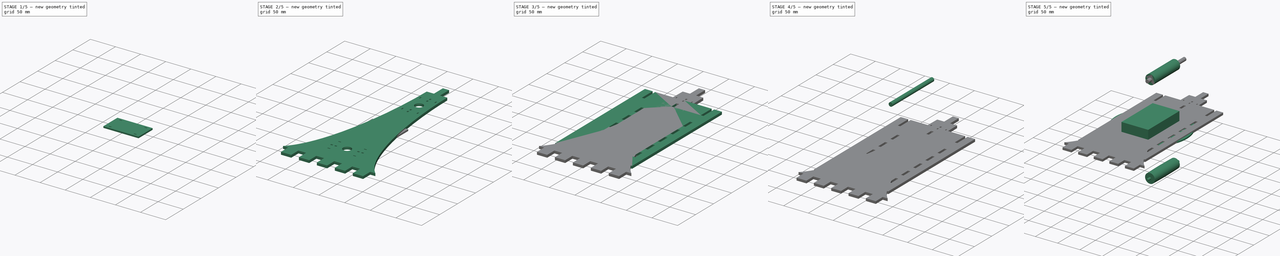
[diagram: build sequence overview — one tinted view per stage of 5, left to right]
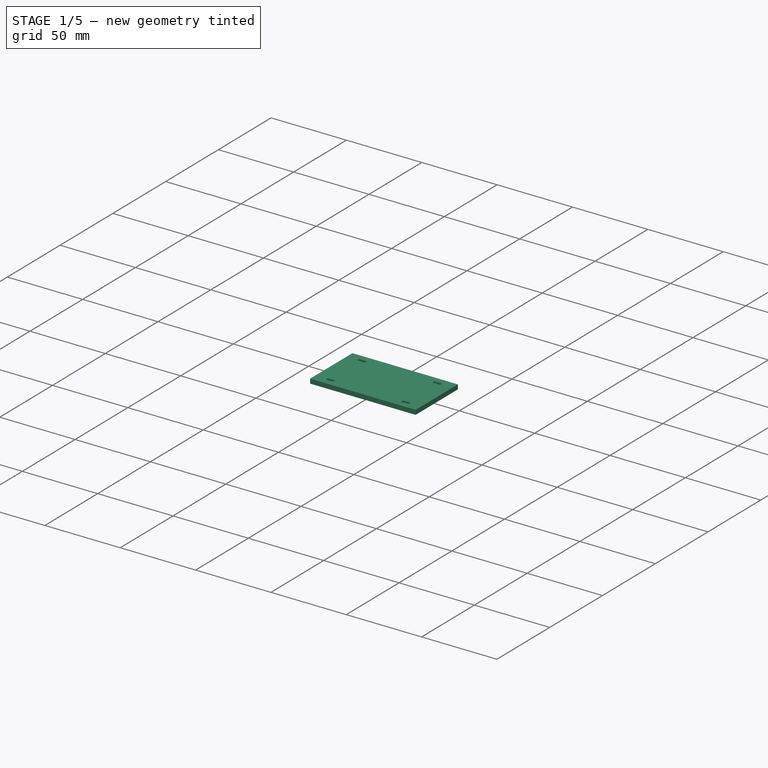
[diagram: stage 1 of 5 — iso view after this stage's code; geometry added in this stage tinted green]
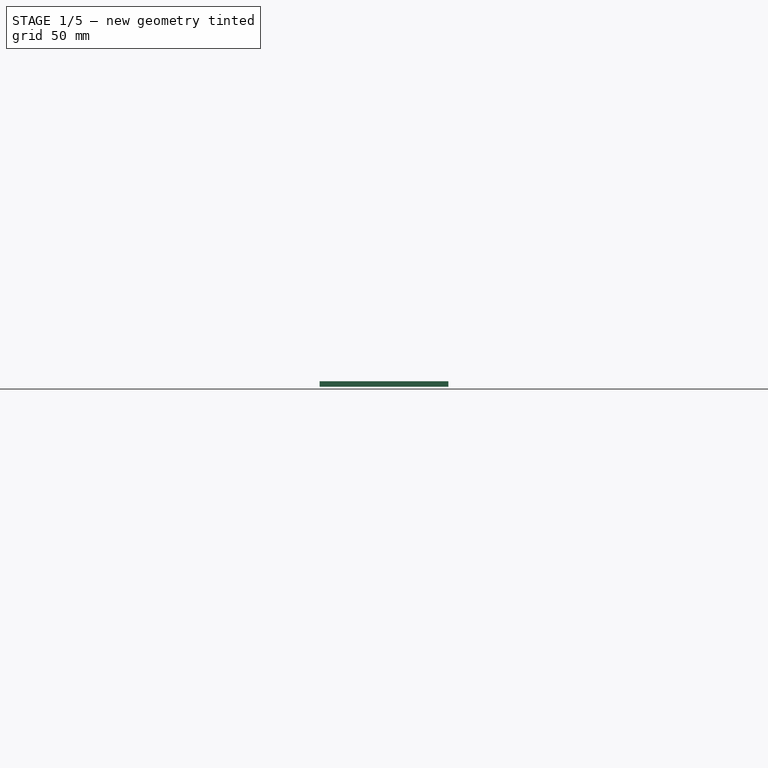
[diagram: stage 1 of 5 — front view after this stage's code; geometry added in this stage tinted green]
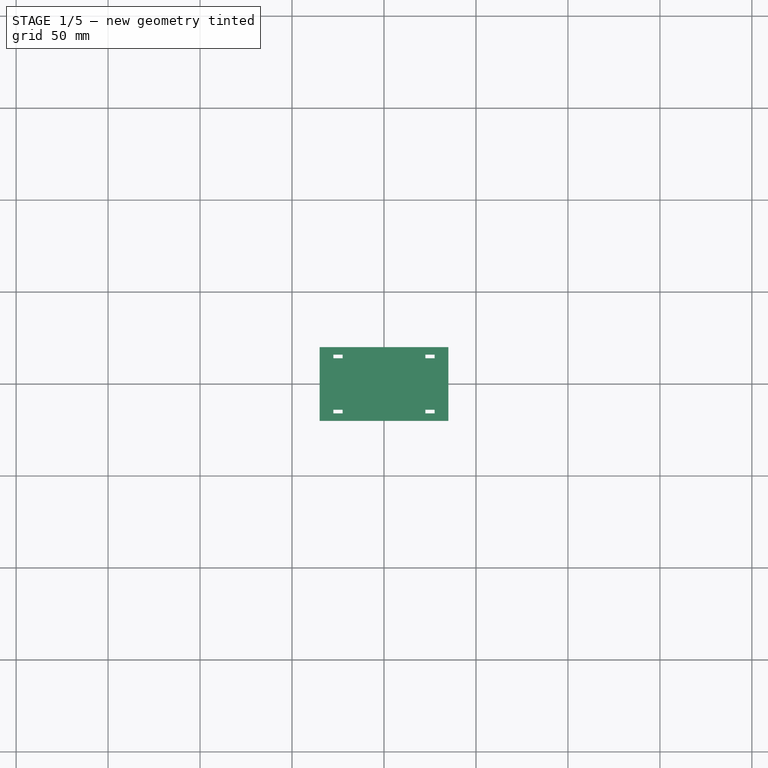
[diagram: stage 1 of 5 — top view after this stage's code; geometry added in this stage tinted green]
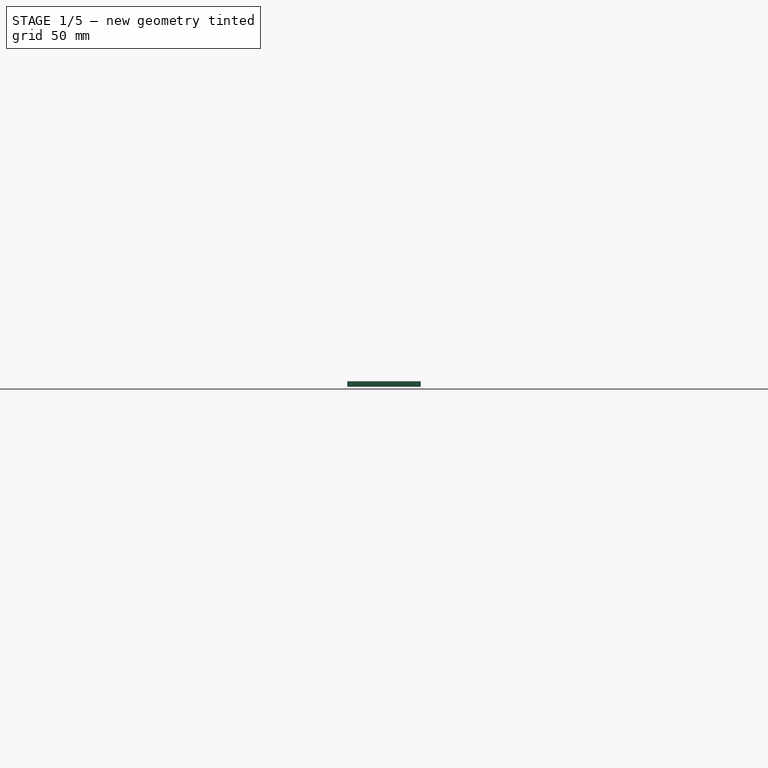
[diagram: stage 1 of 5 — right view after this stage's code; geometry added in this stage tinted green]
FCSTD DOCUMENT  (FreeCAD 0.17R13509 (Git))
Label: All
License: All rights reserved
LicenseURL: http://en.wikipedia.org/wiki/All_rights_reserved
objects: App::Part×21, PartDesign::Pad×18, App::DocumentObjectGroup×15, Drawing::FeatureViewPart×6, Sketcher::SketchObject×5, Part::Cylinder×3, Part::Revolution×2, PartDesign::Pocket×2, PartDesign::Revolution×1, Part::Extrusion×1, Part::MultiFuse×1, Part::Cut×1, Drawing::FeaturePage×1
note: 55 computed .brp shape members not serialized (recipe doc carries the construction recipe); baked Part::Feature solids carry a one-line shape summary decoded from their .brp

FEATURE [App::Part] Part002  label="InnerBearingHolder"
  Group = -> [Pad055]
  License = CC BY 3.0
  LicenseURL = http://creativecommons.org/licenses/by/3.0/
  Origin = -> Origin002
  Placement = pos=(0,-100,82) rot=(0,0,1;0rad)
FEATURE [App::DocumentObjectGroup] Group009  label="bhb_right"
  Group = -> [Part002,Part015]
FEATURE [PartDesign::Pad] Pad056
  Length = 3
  Length2 = 100
  Refine = true
  Type = 0
FEATURE [App::Part] Part018  label="InnerBearingHolder003"
  Group = -> [Pad056]
  License = CC BY 3.0
  LicenseURL = http://creativecommons.org/licenses/by/3.0/
  Origin = -> Origin018
  Placement = pos=(0,100,85) rot=(-0.707107,0.707107,0;3.14159rad)
FEATURE [PartDesign::Pad] Pad057
  Length = 3
  Length2 = 100
  Refine = true
  Type = 0
FEATURE [App::Part] Part017  label="InnerBearingHolder002"
  Group = -> [Pad057]
  License = CC BY 3.0
  LicenseURL = http://creativecommons.org/licenses/by/3.0/
  Origin = -> Origin017
  Placement = pos=(0,100,-2) rot=(-0.707107,0.707107,0;3.14159rad)
FEATURE [PartDesign::Pad] Pad058
  Length = 3
  Length2 = 100
  Refine = true
  Type = 0
FEATURE [App::Part] Part016  label="OuterBearingHolder002"
  Group = -> [Pad058]
  License = CC BY 3.0
  LicenseURL = http://creativecommons.org/licenses/by/3.0/
  Origin = -> Origin016
  Placement = pos=(0,100,-10) rot=(0.707107,-0.707107,0;3.14159rad)
FEATURE [App::DocumentObjectGroup] Group013  label="bh_top_left"
  Group = -> [Part017,Part016]
FEATURE [PartDesign::Pad] Pad059
  Length = 3
  Length2 = 100
  Refine = true
  Type = 0
FEATURE [App::Part] Part019  label="OuterBearingHolder003"
  Group = -> [Pad059]
  License = CC BY 3.0
  LicenseURL = http://creativecommons.org/licenses/by/3.0/
  Origin = -> Origin019
  Placement = pos=(0,100,93) rot=(0.707107,0.707107,0;3.14159rad)
FEATURE [App::DocumentObjectGroup] Group014  label="bh_top_right"
  Group = -> [Part019,Part018]
FEATURE [App::DocumentObjectGroup] Group012  label="bh_top"
  Group = -> [Group013,Group014]
FEATURE [PartDesign::Pad] Pad060
  Length = 3
  Length2 = 100
  Refine = true
  Type = 0
FEATURE [App::Part] Part001  label="OuterBearingHolder"
  Group = -> [Pad060]
  License = CC BY 3.0
  LicenseURL = http://creativecommons.org/licenses/by/3.0/
  Origin = -> Origin001
  Placement = pos=(0,-100,-13) rot=(0,0,1;0rad)
FEATURE [App::DocumentObjectGroup] Group008  label="bhb_left"
  Group = -> [Part001,Part014]
FEATURE [App::DocumentObjectGroup] Group007  label="bh_bottom"
  Group = -> [Group008,Group009]
FEATURE [App::DocumentObjectGroup] Group015  label="bearing_holder"
  Group = -> [Group012,Group007]
FEATURE [Drawing::FeatureViewPart] Ortho  label="Hat001"
  Direction = (0,0,1)
  HiddenWidth = 0.15
  LineWidth = 0.35
  Rotation = 0
  ShowHiddenLines = false
  ShowSmoothLines = false
  Source = -> Pad023
  Tolerance = 0.05
  ViewResult = <g id="Ortho_0_0"\n   transform="rotate(0,109.87,110) translate(109.87,110) scale(1,1)"\n  >\n<g   fill="none"\n   stroke="rgb(0, 0, 0)"\n   stroke-linecap="butt"\n   stroke-linejoin="miter"\n   stroke-width="0.350000"\n   transform="scale(1,-1)"\n  >\n<circle cx ="0" cy ="0" r ="80" /><path id= "2" d=" M 45 6 L 50 6 " />\n<path id= "3" d=" M 50 6 L 50 -6 " />\n<path id= "4" d=" M 50 -6 L 45 -6 " />\n<path id= "5" d=" M 45 -6 L 45 6 " />\n<path id= "6" d=" M -50 6 L -45 6 " />\n<path id= "7" d=" M -45 6 L -45 -6 " />\n<path id= "8" d=" M -45 -6 L -50 -6 " />\n<path id= "9" d=" M -50 -6 L -50 6 " />\n</g>\n</g>
  Visible = true
  X = 109.87
  Y = 110
FEATURE [Drawing::FeatureViewPart] Ortho001  label="Support004"
  Direction = (0,0,1)
  HiddenWidth = 0.15
  LineWidth = 0.35
  Rotation = 0
  ShowHiddenLines = false
  ShowSmoothLines = false
  Source = -> Pad052
  Tolerance = 0.05
  ViewResult = <blob: 3707 chars omitted>
  Visible = true
  X = 475
  Y = 175
FEATURE [Drawing::FeatureViewPart] Ortho003  label="Vertical"
  Direction = (0,0,1)
  HiddenWidth = 0.15
  LineWidth = 0.35
  Rotation = 0
  ShowHiddenLines = false
  ShowSmoothLines = false
  Source = -> Pocket002
  Tolerance = 0.05
  ViewResult = <blob: 4560 chars omitted>
  Visible = true
  X = 275
  Y = 212.5
FEATURE [Drawing::FeatureViewPart] Ortho002  label="Beam"
  Direction = (0,0,1)
  HiddenWidth = 0.15
  LineWidth = 0.35
  Rotation = 90
  ShowHiddenLines = false
  ShowSmoothLines = false
  Source = -> Pad
  Tolerance = 0.05
  ViewResult = <g id="Ortho_0_002"\n   transform="rotate(90,50,300) translate(50,300) scale(1,1)"\n  >\n<g   fill="none"\n   stroke="rgb(0, 0, 0)"\n   stroke-linecap="butt"\n   stroke-linejoin="miter"\n   stroke-width="0.350000"\n   transform="scale(1,-1)"\n  >\n<path id= "1" d=" M -53 6 L 53 6 " />\n<path id= "2" d=" M 53 6 L 53 2 " />\n<path id= "3" d=" M 53 2 L 42 2 " />\n<path id= "4" d=" M 42 2 L 42 -2 " />\n<path id= "5" d=" M 42 -2 L 53 -2 " />\n<path id= "6" d=" M 53 -2 L 53 -6 " />\n<path id= "7" d=" M 53 -6 L -53 -6 " />\n<path id= "8" d=" M -53 -2 L -53 -6 " />\n<path id= "9" d=" M -42 -2 L -53 -2 " />\n<path id= "10" d=" M -42 2 L -42 -2 " />\n<path id= "11" d=" M -53 2 L -42 2 " />\n<path id= "12" d=" M -53 6 L -53 2 " />\n<path id= "13" d=" M 37 -2.5 L 37 2.5 " />\n<path id= "14" d=" M 39 -2.5 L 37 -2.5 " />\n<path id= "15" d=" M 39 2.5 L 39 -2.5 " />\n<path id= "16" d=" M 37 2.5 L 39 2.5 " />\n<path id= "17" d=" M -39 -2.5 L -39 2.5 " />\n<path id= "18" d=" M -37 -2.5 L -39 -2.5 " />\n<path id= "19" d=" M -37 2.5 L -37 -2.5 " />\n<path id= "20" d=" M -39 2.5 L -37 2.5 " />\n</g>\n</g>
  Visible = true
  X = 50
  Y = 300
FEATURE [Drawing::FeatureViewPart] Ortho004  label="Ortho_0_0"
  Direction = (0,0,1)
  HiddenWidth = 0.15
  LineWidth = 0.35
  Rotation = 90
  ShowHiddenLines = false
  ShowSmoothLines = false
  Source = -> Pad060
  Tolerance = 0.05
  ViewResult = <g id="Ortho_0_0"\n   transform="rotate(90,110,300) translate(110,300) scale(1,1)"\n  >\n<g   fill="none"\n   stroke="rgb(0, 0, 0)"\n   stroke-linecap="butt"\n   stroke-linejoin="miter"\n   stroke-width="0.350000"\n   transform="scale(1,-1)"\n  >\n<path id= "1" d=" M -35 20 L 35 20 " />\n<path id= "2" d=" M 35 20 L 35 -20 " />\n<path id= "3" d=" M 35 -20 L -35 -20 " />\n<path id= "4" d=" M -35 -20 L -35 20 " />\n<path id= "5" d=" M -27.5 -16 L -27.5 -14 " />\n<path id= "6" d=" M -22.5 -16 L -27.5 -16 " />\n<path id= "7" d=" M -22.5 -14 L -22.5 -16 " />\n<path id= "8" d=" M -27.5 -14 L -22.5 -14 " />\n<path id= "9" d=" M 22.5 -16 L 22.5 -14 " />\n<path id= "10" d=" M 27.5 -16 L 22.5 -16 " />\n<path id= "11" d=" M 27.5 -14 L 27.5 -16 " />\n<path id= "12" d=" M 22.5 -14 L 27.5 -14 " />\n<path id= "13" d=" M 22.5 14 L 22.5 16 " />\n<path id= "14" d=" M 27.5 14 L 22.5 14 " />\n<path id= "15" d=" M 27.5 16 L 27.5 14 " />\n<path id= "16" d=" M 22.5 16 L 27.5 16 " />\n<path id= "17" d=" M -27.5 14 L -27.5 16 " />\n<path id= "18" d=" M -22.5 14 L -27.5 14 " />\n<path id= "19" d=" M -22.5 16 L -22.5 14 " />\n<path id= "20" d=" M -27.5 16 L -22.5 16 " />\n</g>\n</g>
  Visible = true
  X = 110
  Y = 300
FEATURE [Drawing::FeatureViewPart] Ortho005  label="Ortho_0_001"
  Direction = (0,0,1)
  HiddenWidth = 0.15
  LineWidth = 0.35
  Rotation = 90
  ShowHiddenLines = false
  ShowSmoothLines = false
  Source = -> Pad053
  Tolerance = 0.05
  ViewResult = <g id="Ortho_0_001"\n   transform="rotate(90,175,250) translate(175,250) scale(1,1)"\n  >\n<g   fill="none"\n   stroke="rgb(0, 0, 0)"\n   stroke-linecap="butt"\n   stroke-linejoin="miter"\n   stroke-width="0.350000"\n   transform="scale(1,-1)"\n  >\n<path id= "1" d=" M -35 20 L 35 20 " />\n<path id= "2" d=" M 35 20 L 35 -20 " />\n<path id= "3" d=" M 35 -20 L -35 -20 " />\n<path id= "4" d=" M -35 -20 L -35 20 " />\n<circle cx ="0" cy ="0" r ="4.2" /><path id= "6" d=" M -27.5 -16 L -27.5 -14 " />\n<path id= "7" d=" M -22.5 -16 L -27.5 -16 " />\n<path id= "8" d=" M -22.5 -14 L -22.5 -16 " />\n<path id= "9" d=" M -27.5 -14 L -22.5 -14 " />\n<path id= "10" d=" M 22.5 -16 L 22.5 -14 " />\n<path id= "11" d=" M 27.5 -16 L 22.5 -16 " />\n<path id= "12" d=" M 27.5 -14 L 27.5 -16 " />\n<path id= "13" d=" M 22.5 -14 L 27.5 -14 " />\n<path id= "14" d=" M 22.5 14 L 22.5 16 " />\n<path id= "15" d=" M 27.5 14 L 22.5 14 " />\n<path id= "16" d=" M 27.5 16 L 27.5 14 " />\n<path id= "17" d=" M 22.5 16 L 27.5 16 " />\n<path id= "18" d=" M -27.5 14 L -27.5 16 " />\n<path id= "19" d=" M -22.5 14 L -27.5 14 " />\n<path id= "20" d=" M -22.5 16 L -22.5 14 " />\n<path id= "21" d=" M -27.5 16 L -22.5 16 " />\n<path id= "22" d=" M 27 0 L 27 3 " />\n<path id= "23" d=" M 31 0 L 27 0 " />\n<path id= "24" d=" M 31 3 L 31 0 " />\n<path id= "25" d=" M 27 3 L 31 3 " />\n<path id= "26" d=" M 19 0 L 19 3 " />\n<path id= "27" d=" M 23 0 L 19 0 " />\n<path id= "28" d=" M 23 3 L 23 0 " />\n<path id= "29" d=" M 19 3 L 23 3 " />\n<path id= "30" d=" M -23 -3 L -23 0 " />\n<path id= "31" d=" M -19 -3 L -23 -3 " />\n<path id= "32" d=" M -19 0 L -19 -3 " />\n<path id= "33" d=" M -23 0 L -19 0 " />\n<path id= "34" d=" M -31 -3 L -31 0 " />\n<path id= "35" d=" M -27 -3 L -31 -3 " />\n<path id= "36" d=" M -27 0 L -27 -3 " />\n<path id= "37" d=" M -31 0 L -27 0 " />\n</g>\n</g>
  Visible = true
  X = 175
  Y = 250
FEATURE [Drawing::FeaturePage] Page  label="all"
  EditableTexts = AUTHOR NAME | DRAWING TITLE | FreeCAD DRAWING | A2 | X / Y | SCALE | PN | DN | DD/MM/YYYY | REV A
  Group = -> [Ortho,Ortho001,Ortho002,Ortho003,Ortho004,Ortho005]
  Template = <path>
note: 1 file-system path scrubbed to <path> (originals preserved in the JSON sidecar)
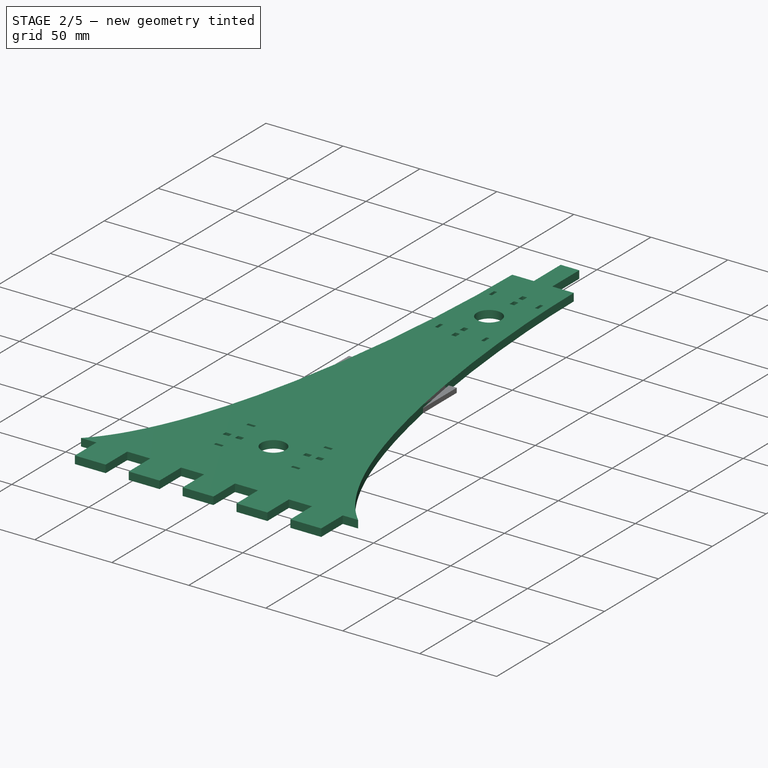
[diagram: stage 2 of 5 — iso view after this stage's code; geometry added in this stage tinted green]
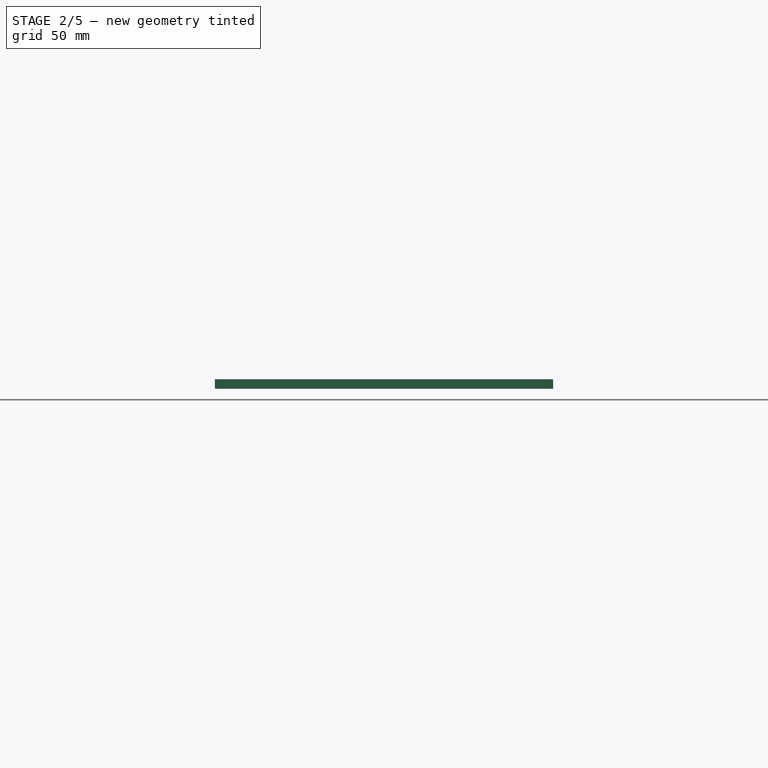
[diagram: stage 2 of 5 — front view after this stage's code; geometry added in this stage tinted green]
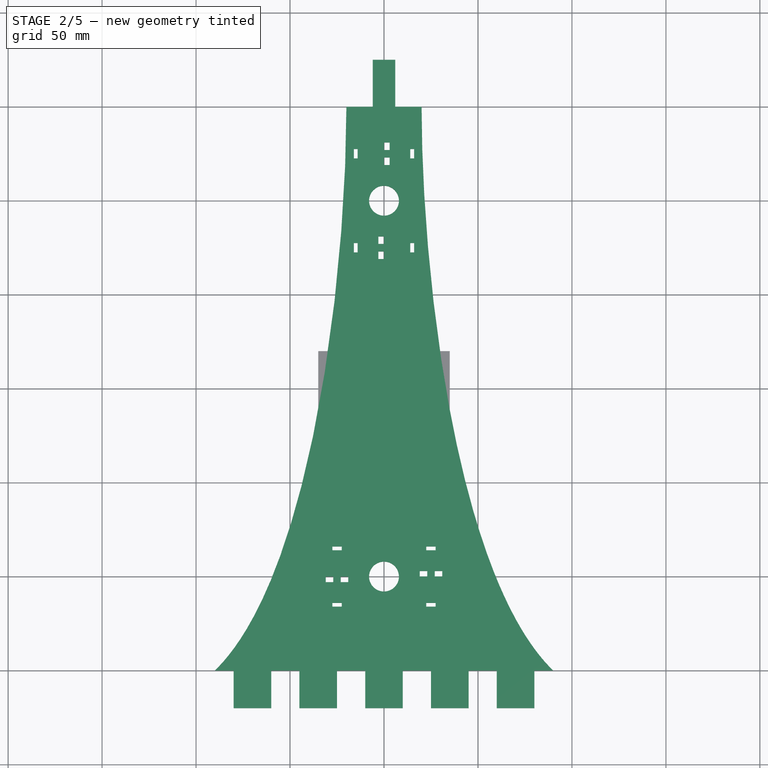
[diagram: stage 2 of 5 — top view after this stage's code; geometry added in this stage tinted green]
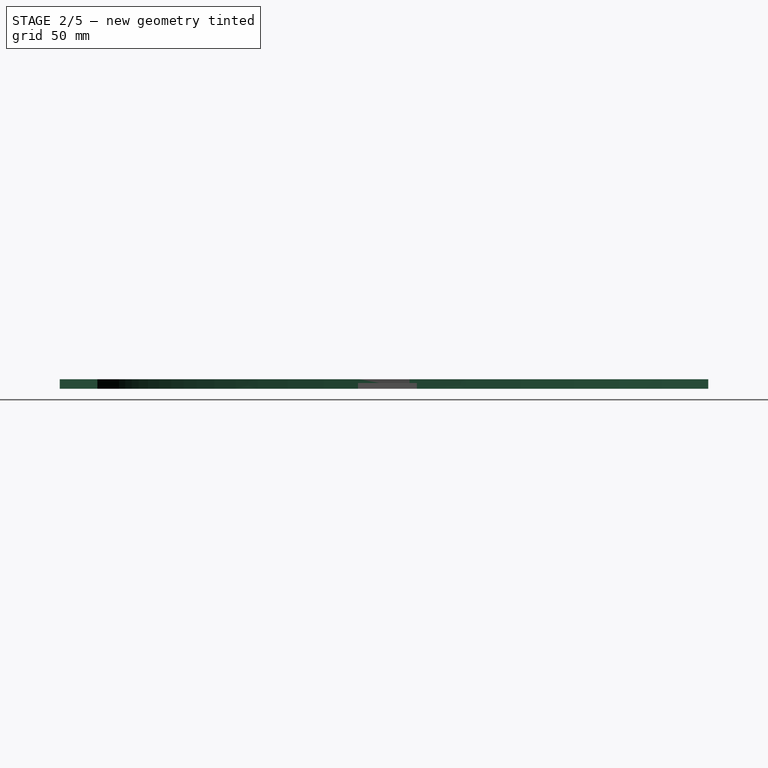
[diagram: stage 2 of 5 — right view after this stage's code; geometry added in this stage tinted green]
FEATURE [App::Part] Part010  label="Support"
  Group = -> [Pad052]
  License = CC BY 3.0
  LicenseURL = http://creativecommons.org/licenses/by/3.0/
  Origin = -> Origin010
  Placement = pos=(-16.5,-155,50) rot=(-0.57735,0.57735,0.57735;2.0944rad)
FEATURE [App::DocumentObjectGroup] Group  label="sup"
  Group = -> [Part010,Part023,Part021,Part022]
FEATURE [PartDesign::Pocket] Pocket002
  Length = 5
  Length2 = 100
  Type = 1
FEATURE [App::Part] Part  label="vertical_left"
  Group = -> [Pocket002]
  License = CC BY 3.0
  LicenseURL = http://creativecommons.org/licenses/by/3.0/
  Origin = -> Origin
  Placement = pos=(0,0,-10) rot=(0,0,1;0rad)
FEATURE [PartDesign::Pocket] Pocket003
  Length = 5
  Length2 = 100
  Type = 1
FEATURE [App::Part] Part005  label="vertical_right"
  Group = -> [Pocket003]
  License = CC BY 3.0
  LicenseURL = http://creativecommons.org/licenses/by/3.0/
  Origin = -> Origin005
  Placement = pos=(0,0,85) rot=(0,0,1;0rad)
FEATURE [App::DocumentObjectGroup] Group011  label="vertical001"
  Group = -> [Part,Part005]
FEATURE [PartDesign::Pad] Pad053
  Length = 3
  Length2 = 100
  Refine = true
  Type = 0
FEATURE [App::Part] Part014  label="InnerBearingHolder001"
  Group = -> [Pad053]
  License = CC BY 3.0
  LicenseURL = http://creativecommons.org/licenses/by/3.0/
  Origin = -> Origin014
  Placement = pos=(0,-100,-5) rot=(0,0,1;0rad)
FEATURE [PartDesign::Pad] Pad054
  Length = 3
  Length2 = 100
  Refine = true
  Type = 0
FEATURE [App::Part] Part015  label="OuterBearingHolder001"
  Group = -> [Pad054]
  License = CC BY 3.0
  LicenseURL = http://creativecommons.org/licenses/by/3.0/
  Origin = -> Origin015
  Placement = pos=(0,-100,90) rot=(0,0,1;0rad)
FEATURE [PartDesign::Pad] Pad055
  Length = 3
  Length2 = 100
  Refine = true
  Type = 0
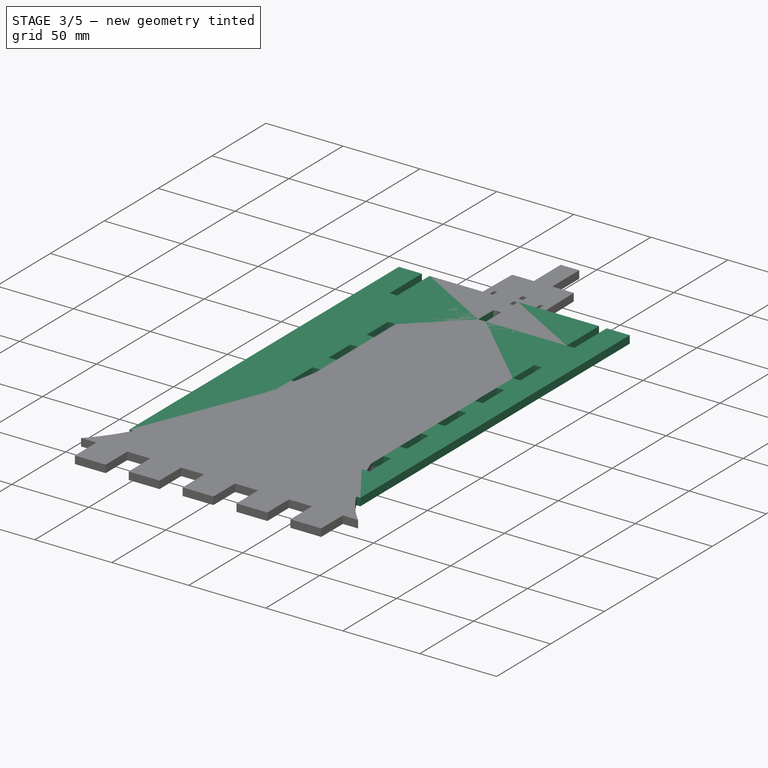
[diagram: stage 3 of 5 — iso view after this stage's code; geometry added in this stage tinted green]
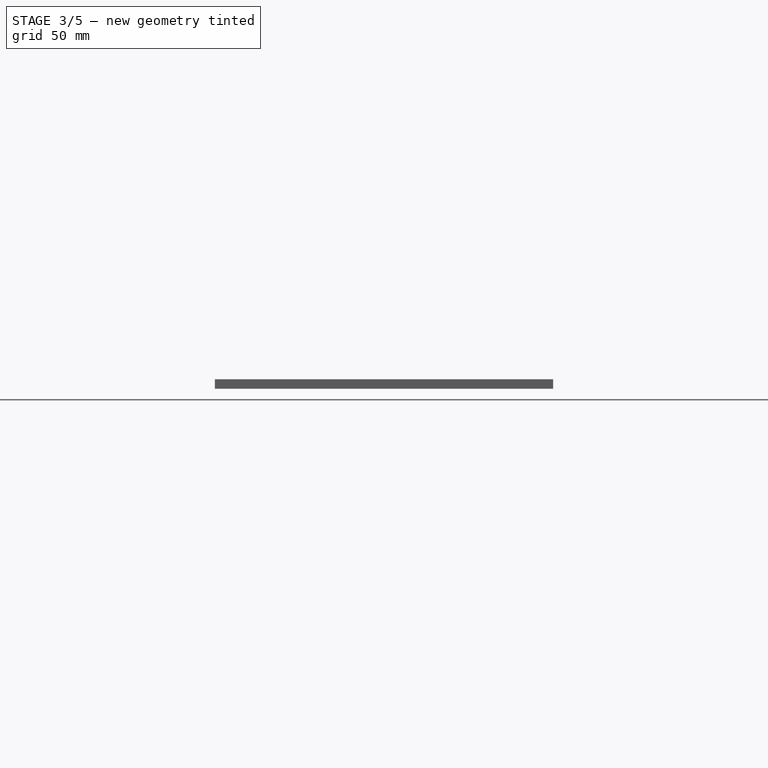
[diagram: stage 3 of 5 — front view after this stage's code; geometry added in this stage tinted green]
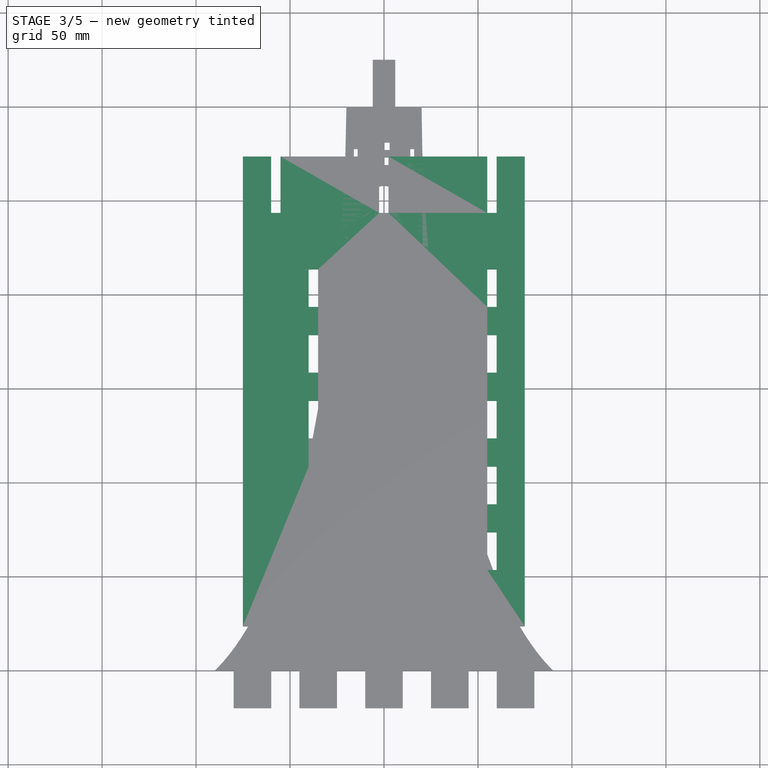
[diagram: stage 3 of 5 — top view after this stage's code; geometry added in this stage tinted green]
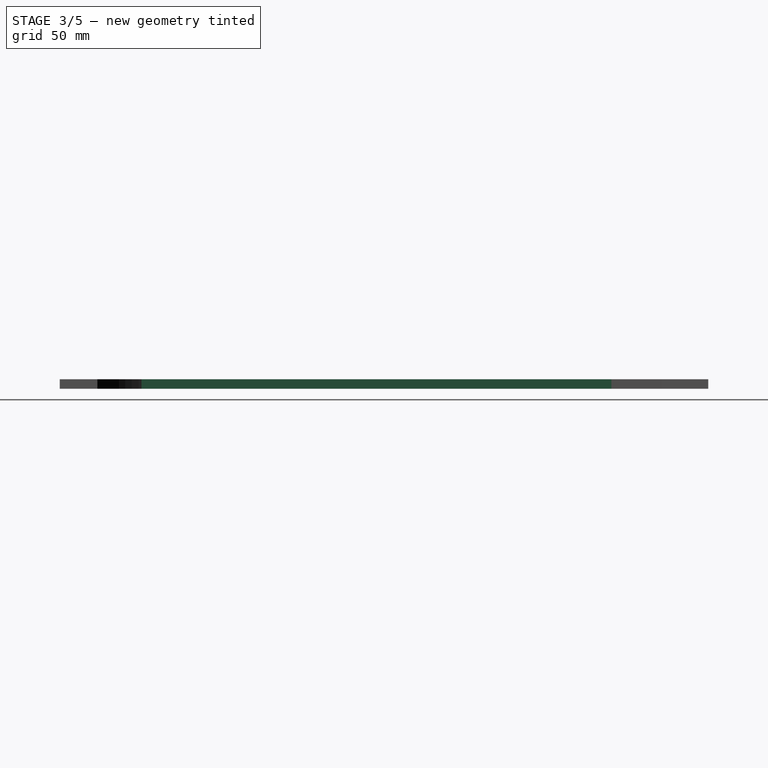
[diagram: stage 3 of 5 — right view after this stage's code; geometry added in this stage tinted green]
FEATURE [App::Part] Part003  label="TopBeam"
  Group = -> [Pad048]
  License = CC BY 3.0
  LicenseURL = http://creativecommons.org/licenses/by/3.0/
  Origin = -> Origin003
  Placement = pos=(1.5,125,40) rot=(0,1,0;4.71239rad)
FEATURE [App::DocumentObjectGroup] Group016  label="beams_top"
  Group = -> [Part003,Part020]
FEATURE [App::DocumentObjectGroup] Group010  label="beams"
  Group = -> [Group006,Group016]
FEATURE [PartDesign::Pad] Pad049
  Length = 5
  Length2 = 100
  Refine = true
  Type = 0
FEATURE [App::Part] Part022  label="Support002"
  Group = -> [Pad049]
  License = CC BY 3.0
  LicenseURL = http://creativecommons.org/licenses/by/3.0/
  Origin = -> Origin022
  Placement = pos=(-16.5,-165,50) rot=(-0.57735,0.57735,0.57735;2.0944rad)
FEATURE [PartDesign::Pad] Pad050
  Length = 5
  Length2 = 100
  Refine = true
  Type = 0
FEATURE [App::Part] Part021  label="Support001"
  Group = -> [Pad050]
  License = CC BY 3.0
  LicenseURL = http://creativecommons.org/licenses/by/3.0/
  Origin = -> Origin021
  Placement = pos=(-16.5,-170,50) rot=(-0.57735,0.57735,0.57735;2.0944rad)
FEATURE [PartDesign::Pad] Pad051
  Length = 5
  Length2 = 100
  Refine = true
  Type = 0
FEATURE [App::Part] Part023  label="Support003"
  Group = -> [Pad051]
  License = CC BY 3.0
  LicenseURL = http://creativecommons.org/licenses/by/3.0/
  Origin = -> Origin023
  Placement = pos=(-16.5,-160,50) rot=(-0.57735,0.57735,0.57735;2.0944rad)
FEATURE [PartDesign::Pad] Pad052
  Length = 5
  Length2 = 100
  Refine = true
  Type = 0
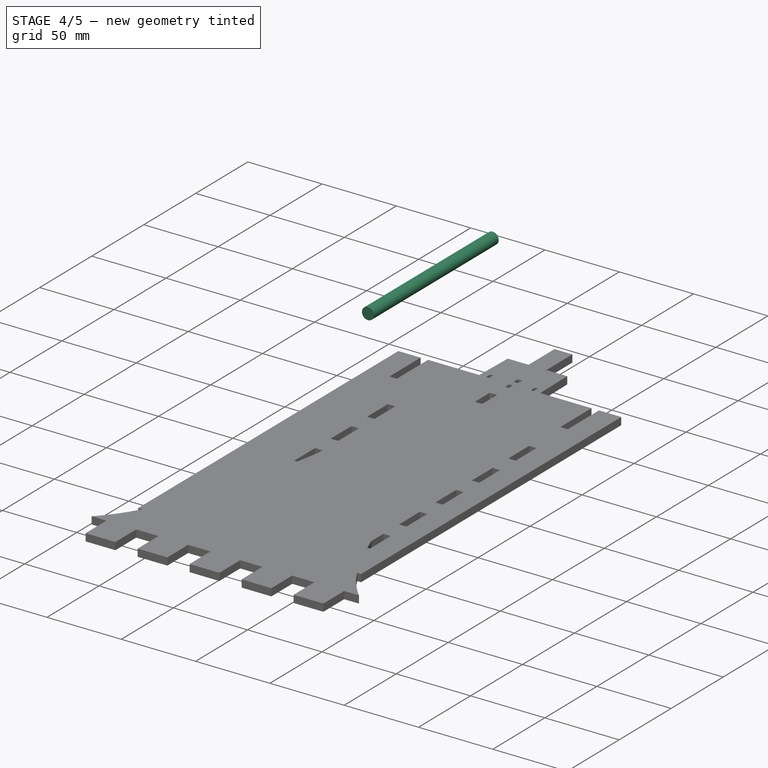
[diagram: stage 4 of 5 — iso view after this stage's code; geometry added in this stage tinted green]
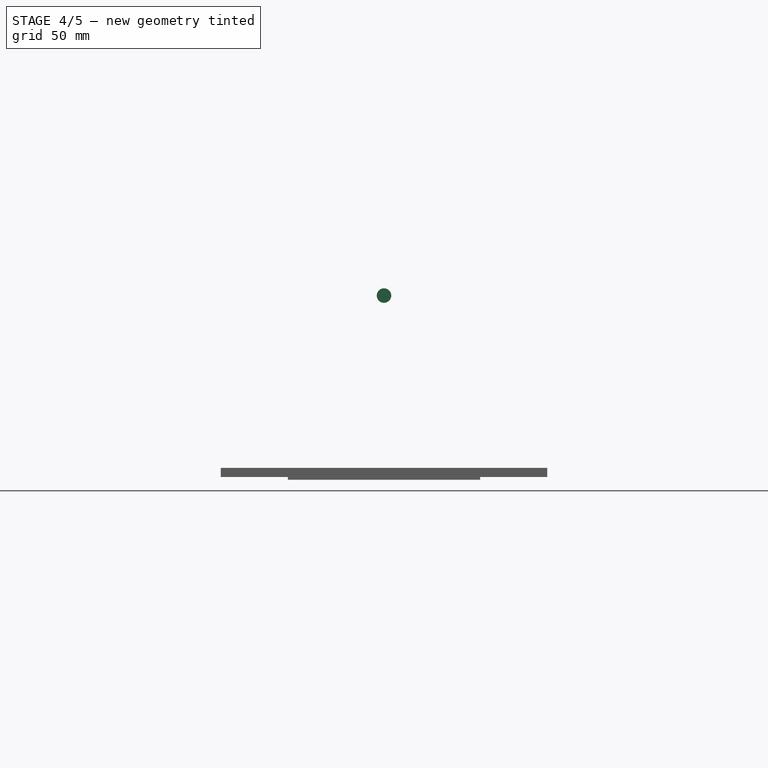
[diagram: stage 4 of 5 — front view after this stage's code; geometry added in this stage tinted green]
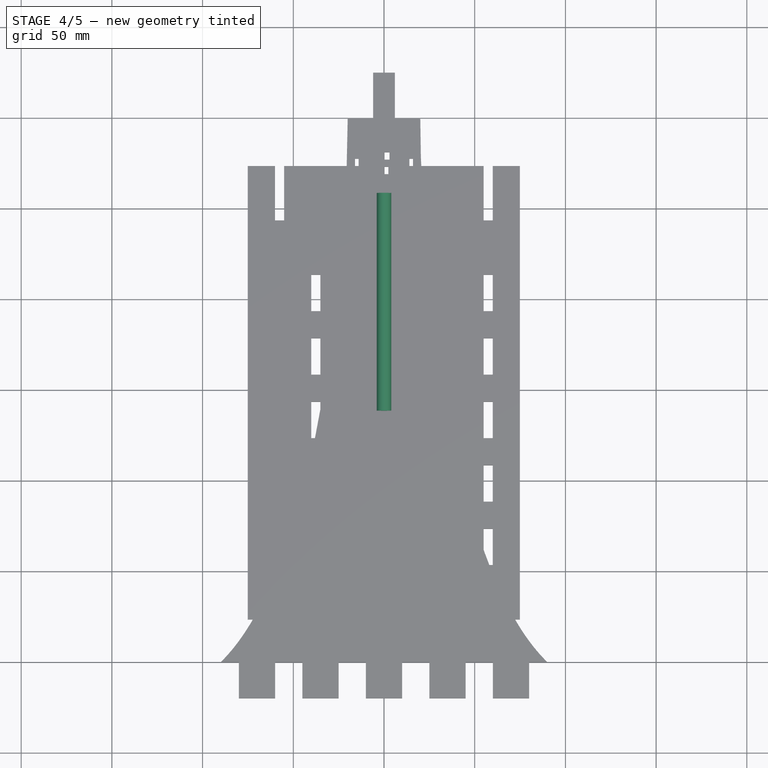
[diagram: stage 4 of 5 — top view after this stage's code; geometry added in this stage tinted green]
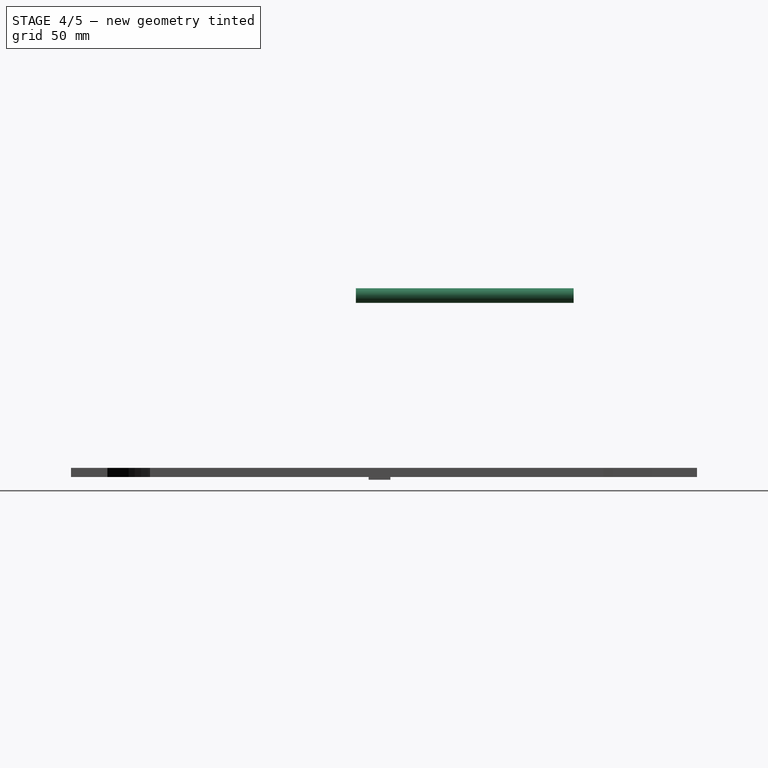
[diagram: stage 4 of 5 — right view after this stage's code; geometry added in this stage tinted green]
FEATURE [App::Part] Part004  label="Hat"
  Group = -> [Pad023]
  License = CC BY 3.0
  LicenseURL = http://creativecommons.org/licenses/by/3.0/
  Origin = -> Origin004
  Placement = pos=(0,153,40) rot=(-0.57735,-0.57735,0.57735;4.18879rad)
FEATURE [Part::Cylinder] Cylinder003  label="BottomAxis"
  Angle = 360
  AttacherType = Attacher::AttachEngine3D
  Height = 120
  Placement = pos=(0,107,100) rot=(1,0,0;1.5708rad)
  Radius = 4
FEATURE [App::DocumentObjectGroup] Group003  label="Axis"
  Group = -> [Cylinder,Cylinder003]
FEATURE [App::DocumentObjectGroup] Group005  label="Transmission"
  Group = -> [Extrude,Group004,Group003]
FEATURE [App::Part] Part008  label="Belt&Roll"
  Group = -> [Sketch024,Extrude,Sketch023,Group003,Group004,Cylinder002,Cylinder,Revolution001,Group005,Cylinder003]
  License = CC BY 3.0
  LicenseURL = http://creativecommons.org/licenses/by/3.0/
  Origin = -> Origin008
  Placement = pos=(0,0,3) rot=(1,0,0;1.5708rad)
FEATURE [PartDesign::Pad] Pad
  Length = 3
  Length2 = 100
  Midplane = true
  Refine = true
  Type = 0
FEATURE [App::Part] Part007  label="Beam3"
  Group = -> [Pad]
  License = CC BY 3.0
  LicenseURL = http://creativecommons.org/licenses/by/3.0/
  Origin = -> Origin007
  Placement = pos=(-25,-101.5,40) rot=(-0.57735,0.57735,0.57735;2.0944rad)
FEATURE [PartDesign::Pad] Pad046
  Length = 3
  Length2 = 100
  Midplane = true
  Refine = true
  Type = 0
FEATURE [App::Part] Part006  label="Beam2"
  Group = -> [Pad046]
  License = CC BY 3.0
  LicenseURL = http://creativecommons.org/licenses/by/3.0/
  Origin = -> Origin006
  Placement = pos=(25,-98.5,40) rot=(-0.57735,0.57735,0.57735;2.0944rad)
FEATURE [App::DocumentObjectGroup] Group006  label="beams_bot"
  Group = -> [Part007,Part006]
FEATURE [PartDesign::Pad] Pad047
  Length = 3
  Length2 = 100
  Midplane = true
  Refine = true
  Type = 0
FEATURE [App::Part] Part020  label="TopBottomBeam"
  Group = -> [Pad047]
  License = CC BY 3.0
  LicenseURL = http://creativecommons.org/licenses/by/3.0/
  Origin = -> Origin020
  Placement = pos=(-1.5,75,40) rot=(0,-1,0;4.71239rad)
FEATURE [PartDesign::Pad] Pad048
  Length = 3
  Length2 = 100
  Midplane = true
  Refine = true
  Type = 0
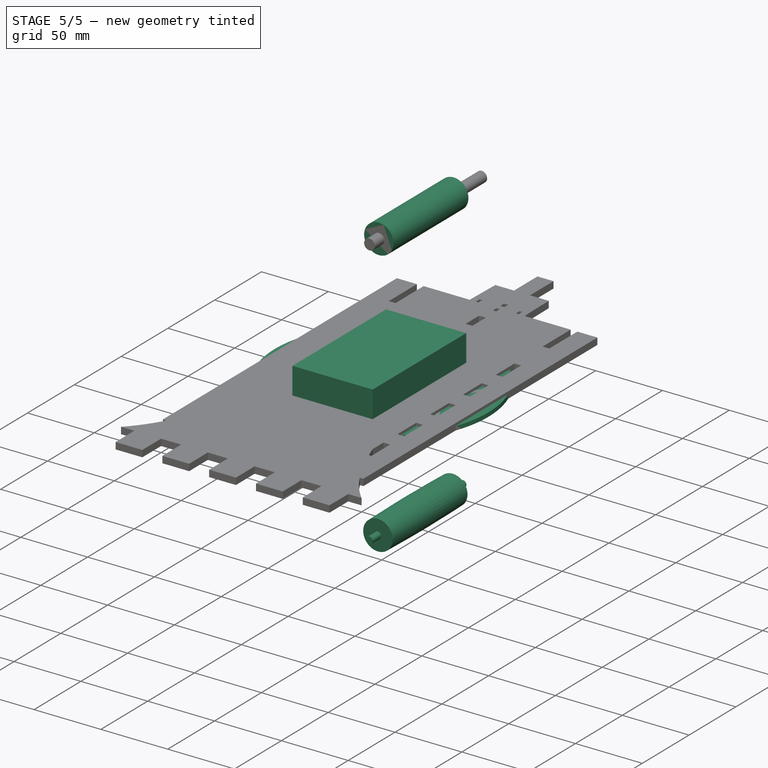
[diagram: stage 5 of 5 — iso view after this stage's code; geometry added in this stage tinted green]
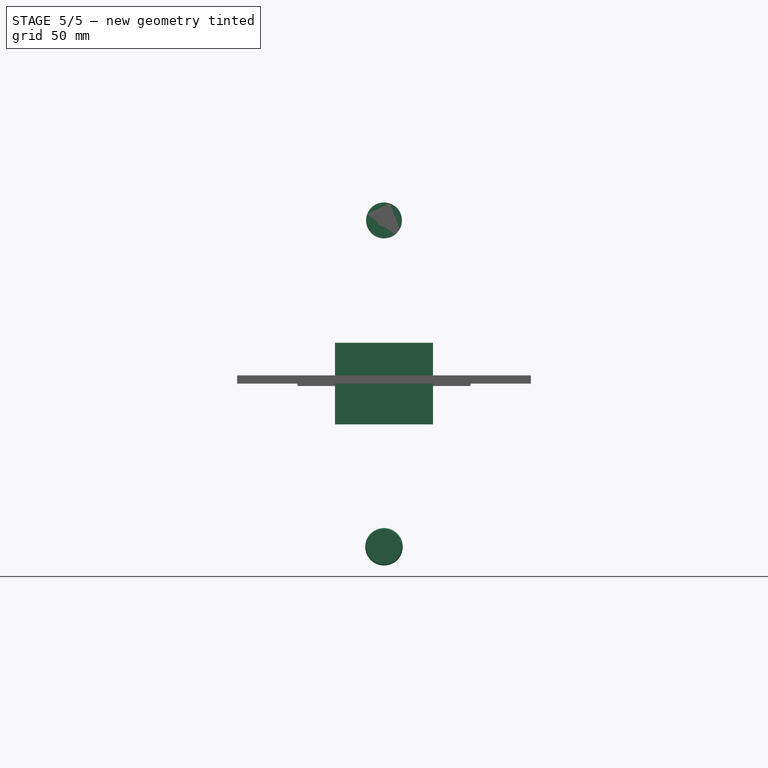
[diagram: stage 5 of 5 — front view after this stage's code; geometry added in this stage tinted green]
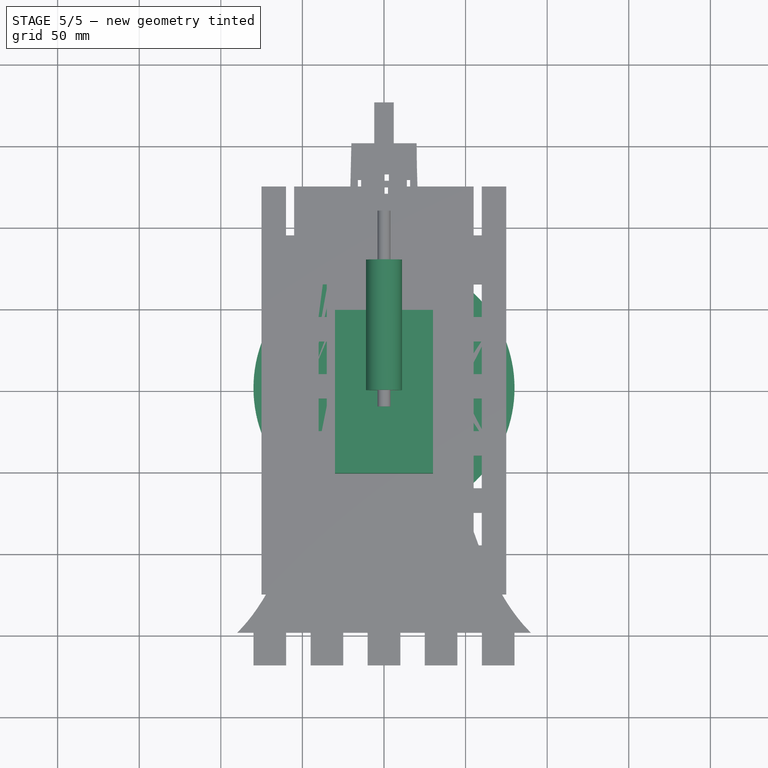
[diagram: stage 5 of 5 — top view after this stage's code; geometry added in this stage tinted green]
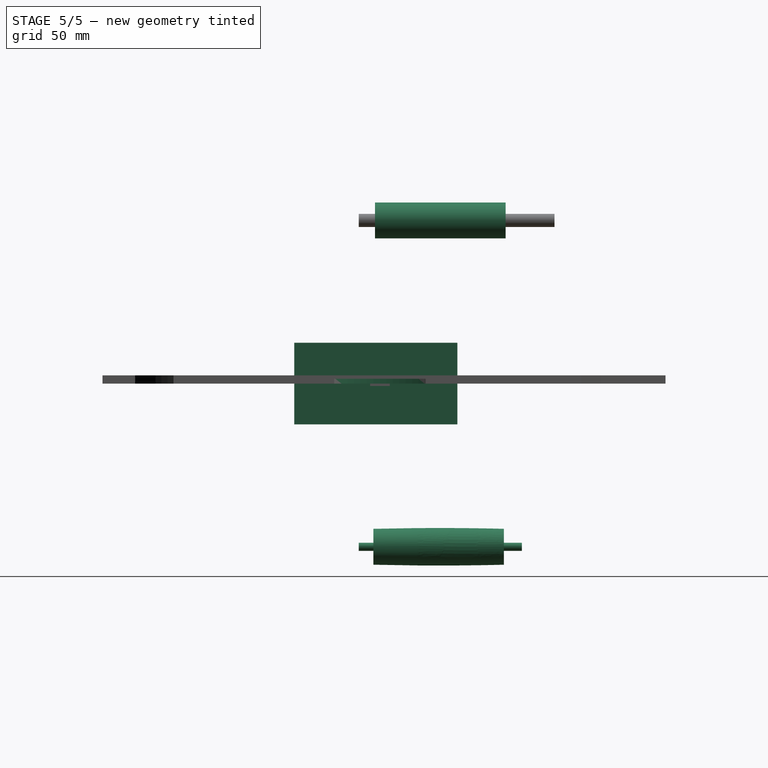
[diagram: stage 5 of 5 — right view after this stage's code; geometry added in this stage tinted green]
FEATURE [Part::Cylinder] Cylinder  label="TopAxis"
  Angle = 360
  AttacherType = Attacher::AttachEngine3D
  Height = 100
  Placement = pos=(0,87,-100) rot=(1,0,0;1.5708rad)
  Radius = 2.5
FEATURE [Sketcher::SketchObject] Sketch023
  MapMode = 5
  Placement = pos=(0,36,-100) rot=(0,0,1;1.5708rad)
  sketch-geometry (5):
    g0: LineSegment StartX=-40 StartY=2.5 StartZ=0 EndX=40 EndY=2.5 EndZ=0
    g1: LineSegment StartX=-40 StartY=2.5 StartZ=0 EndX=-40 EndY=11 EndZ=0
    g2: LineSegment StartX=40 StartY=2.5 StartZ=0 EndX=40 EndY=11 EndZ=0
    g3: GeomPoint [constr] X=0 Y=11.5 Z=0
    g4: ArcOfCircle CenterX=0 CenterY=-1588.75 CenterZ=0 NormalX=0 NormalY=0 NormalZ=1 AngleXU=0 Radius=1600.25 StartAngle=1.5458 EndAngle=1.5958
  constraints (13):
    c: Horizontal(g0)
    c: Coincident(g1,g0)
    c: Vertical(g1)
    c: Coincident(g2,g0)
    c: Vertical(g2)
    c: Symmetric(g0,g0,g-2)
    c: DistanceX(g0,g0) = 80
    c: DistanceY(g0) = 2.5
    c: DistanceY(g2) = 11
    c: PointOnObject(g4,g-2)
    c: Coincident(g4,g1)
    c: Coincident(g4,g2)
    c: PointOnObject(g3,g4)
FEATURE [PartDesign::Revolution] Revolution001  label="Top"
  Angle = 360
  Axis = (0,1,0)
  Base = (0,36,-100)
  Placement = pos=(0,36,-100) rot=(0,0,1;1.5708rad)
  Profile = -> Sketch023
  ReferenceAxis = -> Sketch023 [H_Axis]
  Refine = true
FEATURE [Sketcher::SketchObject] Sketch024
  MapMode = 5
  sketch-geometry (4):
    g0: LineSegment StartX=-11 StartY=100 StartZ=0 EndX=-11 EndY=-100 EndZ=0
    g1: LineSegment StartX=11 StartY=-100 StartZ=0 EndX=11 EndY=100 EndZ=0
    g2: ArcOfCircle CenterX=0 CenterY=100 CenterZ=0 NormalX=0 NormalY=0 NormalZ=1 AngleXU=0 Radius=11 StartAngle=0 EndAngle=3.14159
    g3: ArcOfCircle CenterX=0 CenterY=-100 CenterZ=0 NormalX=0 NormalY=0 NormalZ=1 AngleXU=0 Radius=11 StartAngle=3.14159 EndAngle=6.28319
  constraints (15):
    c: Vertical(g0)
    c: Vertical(g1)
    c: Symmetric(g0,g1,g-2)
    c: Symmetric(g0,g0,g-1)
    c: Symmetric(g1,g1,g-1)
    c: PointOnObject(g2,g-2)
    c: Coincident(g2,g0)
    c: Coincident(g2,g1)
    c: PointOnObject(g3,g-2)
    c: Coincident(g3,g0)
    c: Coincident(g3,g1)
    c: DistanceY(g1,g1) = 200
    c: DistanceY(g2) = 100
    c: DistanceX(g2,g1) = 11
    c: DistanceY(g3) = -100
FEATURE [Part::Extrusion] Extrude  label="Belt"
  Base = -> Sketch024
  Dir = (0,0,60)
  DirMode = 0
  FaceMakerClass = Part::FaceMakerExtrusion
  LengthFwd = 0
  LengthRev = 0
  Placement = pos=(0,66,0) rot=(1,0,0;1.5708rad)
  Solid = false
  Symmetric = false
FEATURE [Part::Cylinder] Cylinder002  label="Bottom"
  Angle = 360
  AttacherType = Attacher::AttachEngine3D
  Height = 80
  Placement = pos=(0,77,100) rot=(1,0,0;1.5708rad)
  Radius = 11
FEATURE [App::DocumentObjectGroup] Group004  label="Rollers"
  Group = -> [Cylinder002,Revolution001]
FEATURE [Sketcher::SketchObject] Sketch020
  MapMode = 5
  sketch-geometry (2):
    g0: ArcOfCircle CenterX=0 CenterY=-5 CenterZ=0 NormalX=0 NormalY=0 NormalZ=1 AngleXU=0 Radius=100 StartAngle=1.82348 EndAngle=3.09157
    g1: ArcOfCircle CenterX=0 CenterY=403.825 CenterZ=0 NormalX=0 NormalY=0 NormalZ=1 AngleXU=0 Radius=313 StartAngle=4.63243 EndAngle=4.71239
  constraints (9):
    c: PointOnObject(g0,g-2)
    c: PointOnObject(g0,g-1)
    c: Radius(g0) = 100
    c: DistanceY(g0) = -5
    c: PointOnObject(g1,g-2)
    c: Coincident(g1,g0)
    c: PointOnObject(g1,g-2)
    c: DistanceY(g1,g0) = 1
    c: DistanceX(g0,g-1) = 25
FEATURE [Part::Revolution] Revolve  label="BowlBottom"
  Angle = 360
  Axis = (0,1,0)
  Base = (0,0,0)
  Placement = pos=(0,0,0) rot=(0,0,1;3.14159rad)
  Solid = true
  Source = -> Sketch020
  Symmetric = false
FEATURE [Sketcher::SketchObject] Sketch021
  MapMode = 5
  Placement = pos=(0,0,0) rot=(0,0,1;3.14159rad)
  sketch-geometry (2):
    g0: ArcOfCircle CenterX=0 CenterY=-5 CenterZ=0 NormalX=0 NormalY=0 NormalZ=1 AngleXU=0 Radius=100 StartAngle=1.82348 EndAngle=3.09157
    g1: ArcOfCircle CenterX=0 CenterY=403.825 CenterZ=0 NormalX=0 NormalY=0 NormalZ=1 AngleXU=0 Radius=313 StartAngle=4.63243 EndAngle=4.71239
  constraints (9):
    c: PointOnObject(g0,g-2)
    c: PointOnObject(g0,g-1)
    c: Radius(g0) = 100
    c: DistanceY(g0) = -5
    c: PointOnObject(g1,g-2)
    c: Coincident(g1,g0)
    c: PointOnObject(g1,g-2)
    c: DistanceY(g1,g0) = 1
    c: DistanceX(g0,g-1) = 25
FEATURE [Part::Revolution] Revolve001  label="BowlTop"
  Angle = 360
  Axis = (0,1,0)
  Base = (0,0,0)
  Placement = pos=(0,0,0) rot=(0,0,1;3.14159rad)
  Solid = true
  Source = -> Sketch021
  Symmetric = false
FEATURE [Part::MultiFuse] Fusion003  label="BowlWelded"
  Placement = pos=(0,-2.5,100) rot=(1,0,0;1.5708rad)
  Refine = true
  Shapes = -> [Revolve001,Revolve]
FEATURE [Sketcher::SketchObject] Sketch022
  MapMode = 5
  Placement = pos=(0,0,0) rot=(1,0,0;3.14159rad)
  sketch-geometry (5):
    g0: LineSegment [constr] StartX=-100 StartY=2.5 StartZ=0 EndX=100 EndY=2.5 EndZ=0
    g1: LineSegment StartX=-30 StartY=52.5 StartZ=0 EndX=30 EndY=52.5 EndZ=0
    g2: LineSegment StartX=30 StartY=52.5 StartZ=0 EndX=30 EndY=-47.5 EndZ=0
    g3: LineSegment StartX=30 StartY=-47.5 StartZ=0 EndX=-30 EndY=-47.5 EndZ=0
    g4: LineSegment StartX=-30 StartY=-47.5 StartZ=0 EndX=-30 EndY=52.5 EndZ=0
  constraints (15):
    c: DistanceX(g0,g0) = 200
    c: DistanceY(g-1,g0) = 2.5
    c: Symmetric(g0,g0,g-2)
    c: Coincident(g1,g2)
    c: Coincident(g2,g3)
    c: Coincident(g3,g4)
    c: Coincident(g4,g1)
    c: Horizontal(g1)
    c: Horizontal(g3)
    c: Vertical(g2)
    c: Vertical(g4)
    c: Symmetric(g1,g1,g-2)
    c: Symmetric(g1,g3,g0)
    c: DistanceY(g4,g4) = 100
    c: DistanceX(g1,g1) = 60
FEATURE [PartDesign::Pad] Pad019  label="BowlHole"
  Length = 50
  Length2 = 100
  Midplane = true
  Placement = pos=(0,0,0) rot=(1,0,0;3.14159rad)
  Profile = -> Sketch022
  Refine = true
  Type = 0
FEATURE [Part::Cut] Cut001  label="BowlWelded&holed"
  Base = -> Fusion003
  Placement = pos=(0,38.5,0) rot=(0,0,1;0rad)
  Refine = true
  Tool = -> Pad019
FEATURE [App::Part] Part009  label="Bowl"
  Group = -> [Revolve,Sketch021,Sketch022,Revolve001,Sketch020,Fusion003,Pad019,Cut001]
  License = CC BY 3.0
  LicenseURL = http://creativecommons.org/licenses/by/3.0/
  Origin = -> Origin009
  Placement = pos=(0,-1,76) rot=(1,0,0;4.71239rad)
FEATURE [PartDesign::Pad] Pad023
  Length = 3
  Length2 = 100
  Refine = true
  Type = 0
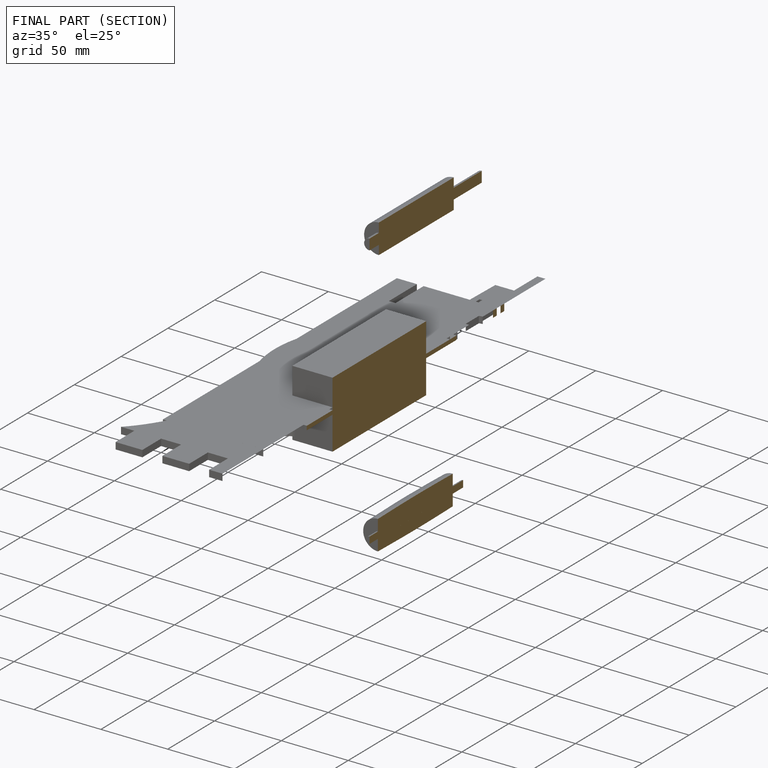
[diagram: finished part — half-section view (interior)]
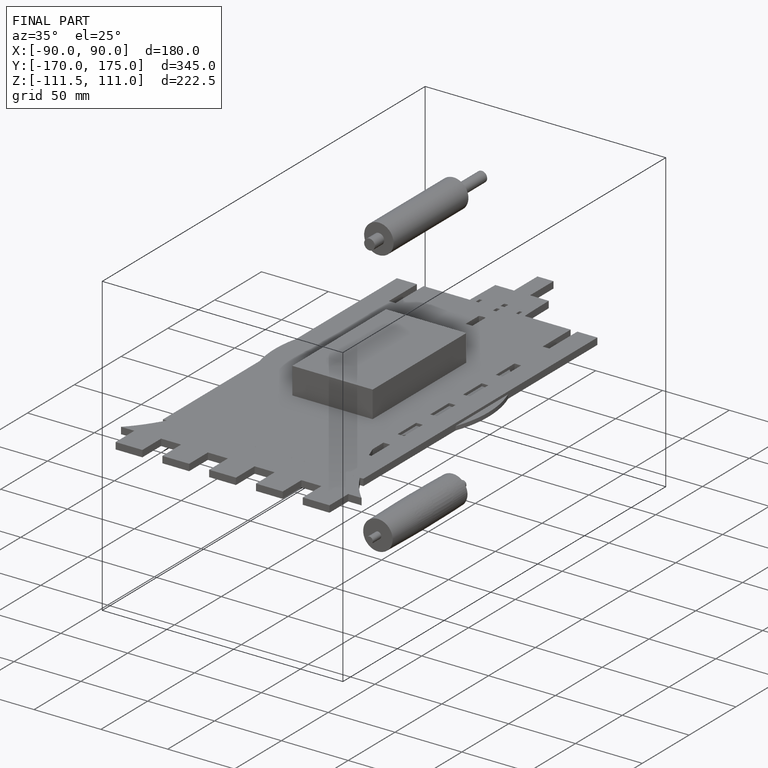
[diagram: finished part — iso view with bounding-box wireframe]
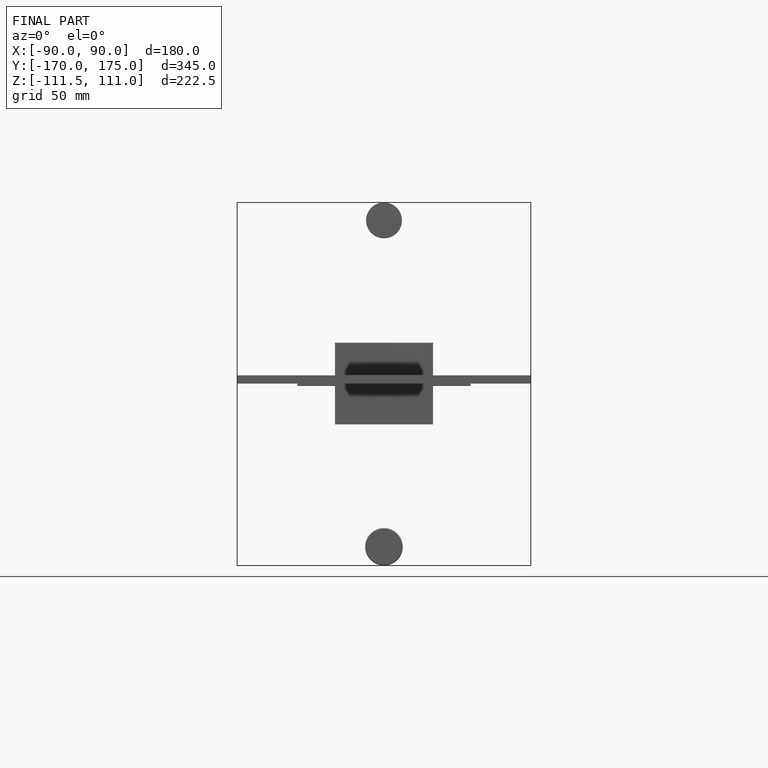
[diagram: finished part — front view with bounding-box wireframe]
